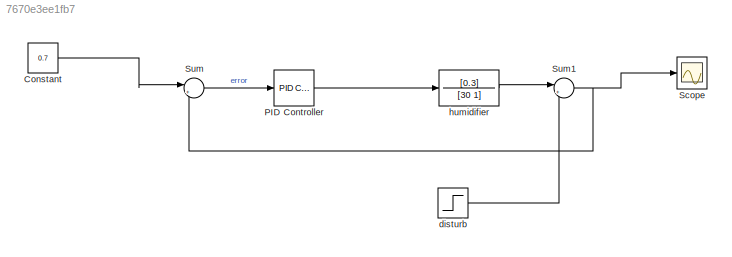
MODEL slx_7670e3ee1fb7
KIND model
CONFIG AbsTol = auto
CONFIG EnableMultiTasking = off
CONFIG FixedStep = auto
CONFIG MaxStep = auto
CONFIG MinStep = auto
CONFIG RelTol = 1e-3
CONFIG SampleTimeConstraint = Unconstrained
CONFIG SolverName = VariableStepAuto
CONFIG StartTime = 0.0
CONFIG StopTime = 86400
BLOCK [Constant] Constant
  Value = 0.7
BLOCK [Reference] PID Controller  REF=slpidlib/PID Controller
  LibrarySourceBlock = simulink/Continuous/PID Controller
  SourceBlock = slpidlib/PID Controller
  SourceType = PID 1dof
BLOCK [Scope] Scope
  Floating = off
  NumInputPorts = 1
  ScopeSpecificationString = Simulink.scopes.TimeScopeBlockCfg('CurrentConfiguration', extmgr.ConfigurationSet(extmgr.Configuration('Core','General UI',true),extmgr.Configuration('Core','Source UI',true),extmgr.Configuration('Sources','WiredSimulink',true),extmgr.Configuration('Visuals','Time Domain',true,'SerializedDisplays',{struct('MinYLimReal','-0.08749','MaxYLimReal','0.7874','YLabelReal','','MinYLimMag','0.00000','MaxYL...<+1474ch>
BLOCK [Sum] Sum
  Inputs = |+-
BLOCK [Sum] Sum1
  Inputs = |+-
BLOCK [Step] disturb
  After = 0.3
  SampleTime = 0
  Time = 30000
BLOCK [TransferFcn] humidifier 
  Denominator = [30 1]
  Numerator = [0.3]
LINE Constant:1 -> Sum:1
LINE PID Controller:1 -> humidifier :1
NET Sum1:1 -> Scope:1, Sum:2
LINE Sum:1 -> PID Controller:1
LINE disturb:1 -> Sum1:2
LINE humidifier :1 -> Sum1:1
note: NET lines group one-source signal fan-out (src -> all destinations, sorted); 1:1 wires keep LINE
